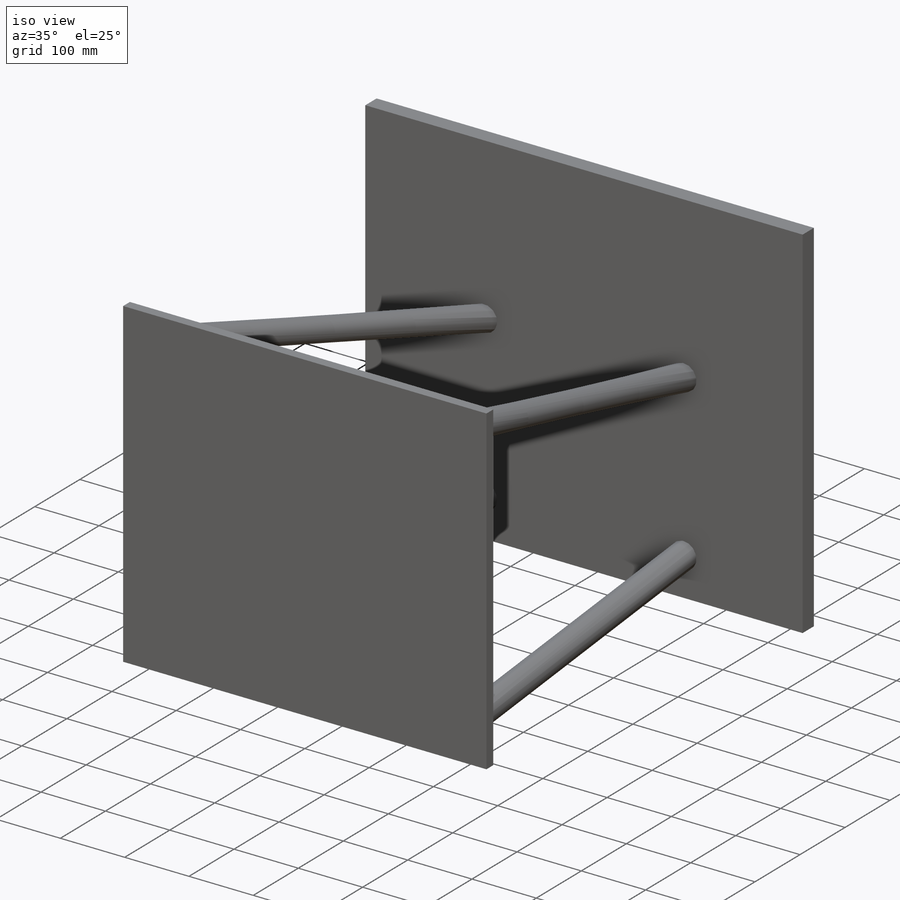
[diagram: iso view]
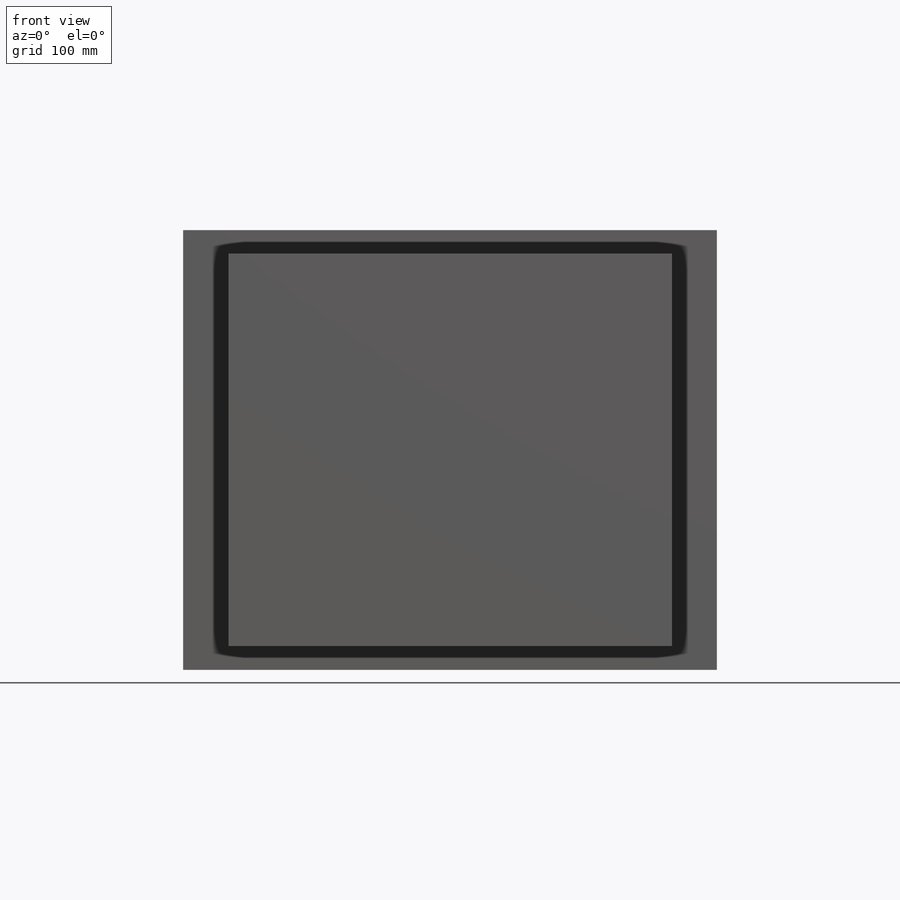
[diagram: front view]
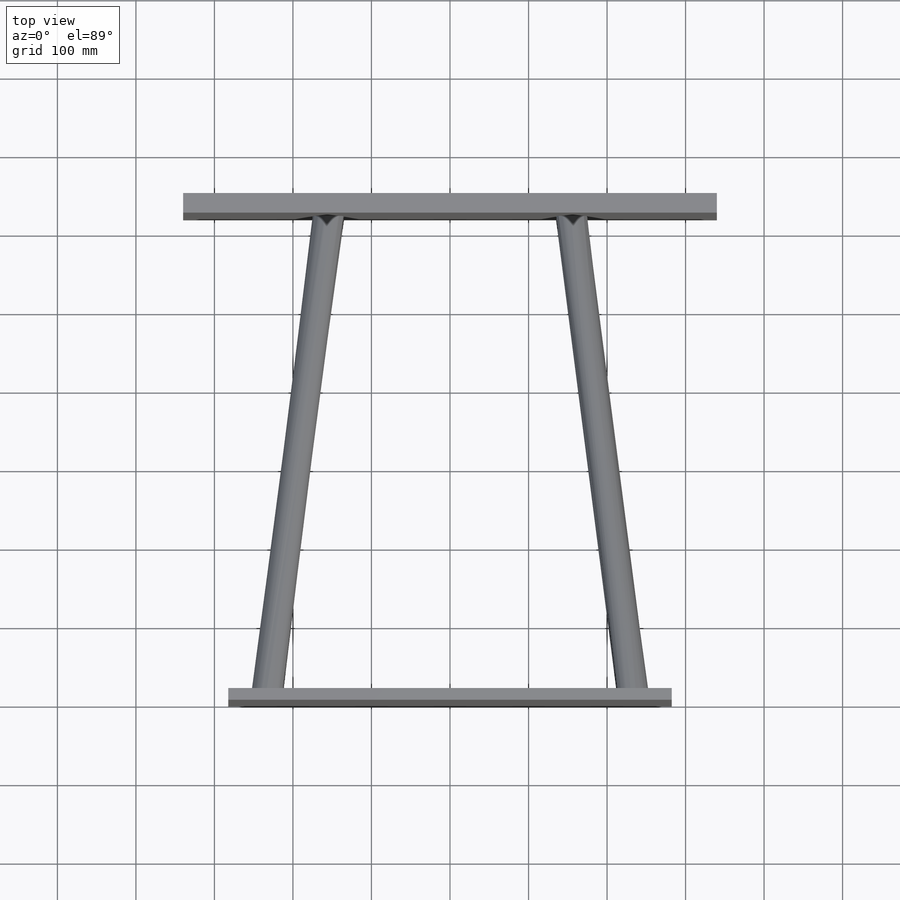
[diagram: top view]
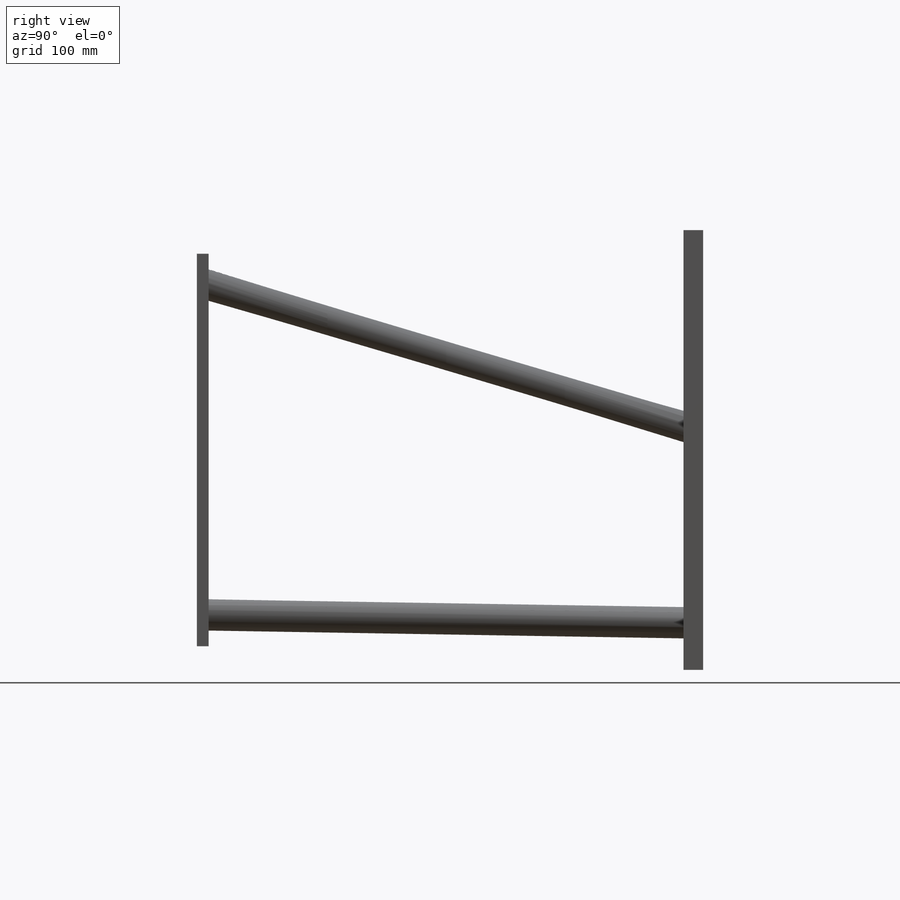
[diagram: right view]
SOLIDWORKS PART (.sldprt)
format: sldprt  version: not decoded by parser v0  size: 308,736 bytes
history: native  units: mm
features: sketch x10, extrude x5, material x1, plane x1 (+13 scaffold rows collapsed)
feature tree (30):
  scaffold x13  (default folders/planes/origin — collapsed)
  material  "Материал <не указан>"
  sketch  "Эскиз6"  dims[D1=565.0mm D2=500.0mm]
  extrude  "Столик-дерево"  Depth=15mm
  plane  "Плоскость2"  Offset=625mm
  sketch  "Эскиз7"  dims[D1=680.0mm D2=560.0mm]
  extrude  "Подставка-металл"  Depth=5mm
  sketch  "Эскиз8"  dims[D1=560.0mm]
  sketch  "Эскиз10"  dims[D1=~40.753025mm]
  sketch  "Эскиз11"  dims[D1=~43.648434mm]
  sketch  "Эскиз12"  dims[D1=~56.912163mm]
  sketch  "Эскиз17"  dims[D1=~62.830793mm]
  sketch  "Эскиз13"  dims[D1=~71.940097mm]
  sketch  "Эскиз14"  dims[D1=~73.850803mm]
  sketch  "Эскиз15"  dims[D1=~33.669953mm]
  extrude  "По сечениям6"  [1 undecoded]
  extrude  "По сечениям7"  [1 undecoded]
  extrude  "По сечениям8"  [1 undecoded]
decode coverage: 12 of 15 modeling features carry decoded parameters
note: ~ marks probable driven/reference dimensions
note: 3 parameter values undecoded
summary: no parameter record found for 3 features
note: suppression state not decoded; provenance and decode notes live in map.json
